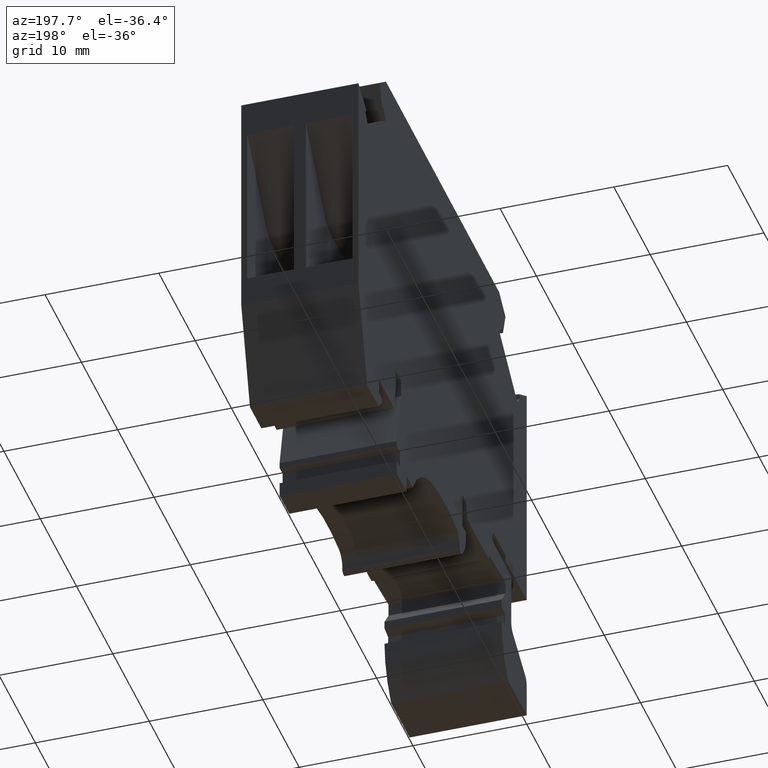
[diagram: clean part render]
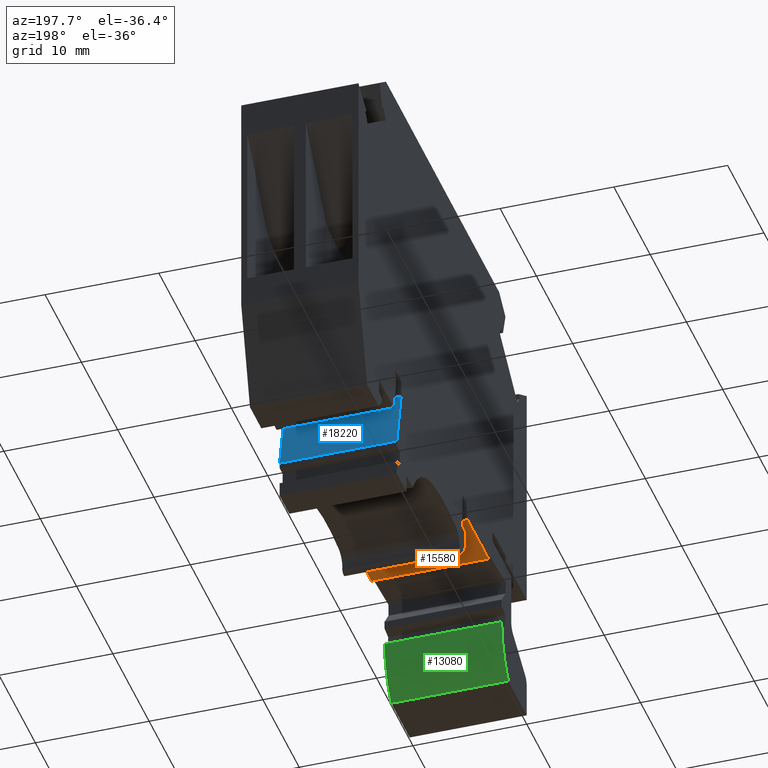
[diagram: same view with three faces highlighted in distinct colors, each labeled with its STEP entity id]
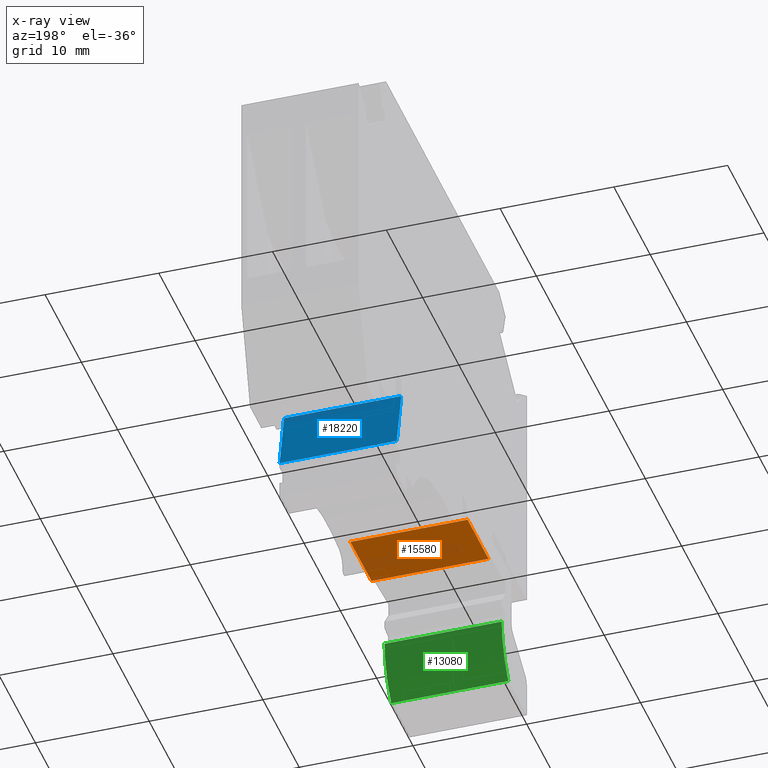
[diagram: x-ray of the same camera — body ghosted, the three highlighted faces saturated]
A machine part, auxiliary view with three faces highlighted in distinct colors.
The next image is the same camera in x-ray (body ghosted, the three faces saturated) — at least one of them is partly hidden behind the body in this view.
Their STEP definitions:

[orange] entity #15580 — the highlighted planar face has unit normal (-0, -0, 1).
#4010=CARTESIAN_POINT('',(-28.5520985338077,13.1295237515582,10.3));
#4020=VERTEX_POINT('',#4010);
#4050=CARTESIAN_POINT('',(0.,13.1295237515583,10.3));
#4060=DIRECTION('',(-1.,-5.25286014369684E-15,0.));
#4070=VECTOR('',#4060,1.);
#4080=LINE('',#4050,#4070);
#4090=CARTESIAN_POINT('',(-34.3520985338076,13.1295237515581,10.3));
#4100=VERTEX_POINT('',#4090);
#4110=EDGE_CURVE('',#4020,#4100,#4080,.T.);
#7350=CARTESIAN_POINT('',(-34.3520985338076,13.1295237515581,
-7.105427357601E-15));
#7360=VERTEX_POINT('',#7350);
#7390=CARTESIAN_POINT('',(0.,13.1295237515583,-7.105427357601E-15));
#7400=DIRECTION('',(-1.,-5.25286014369684E-15,0.));
#7410=VECTOR('',#7400,1.);
#7420=LINE('',#7390,#7410);
#7430=CARTESIAN_POINT('',(-28.5520985338077,13.1295237515582,
-7.105427357601E-15));
#7440=VERTEX_POINT('',#7430);
#7450=EDGE_CURVE('',#7440,#7360,#7420,.T.);
#15260=CARTESIAN_POINT('',(-28.5520985338077,13.1295237515582,5.15));
#15270=DIRECTION('',(0.,0.,1.));
#15280=VECTOR('',#15270,1.);
#15290=LINE('',#15260,#15280);
#15300=EDGE_CURVE('',#7440,#4020,#15290,.T.);
#15420=CARTESIAN_POINT('',(-29.7798217145742,13.1295237515582,5.15));
#15430=DIRECTION('',(-5.25286014369684E-15,1.,0.));
#15440=DIRECTION('',(1.,5.25286014369684E-15,0.));
#15450=AXIS2_PLACEMENT_3D('',#15420,#15430,#15440);
#15460=PLANE('',#15450);
#15470=ORIENTED_EDGE('',*,*,#4110,.T.);
#15480=ORIENTED_EDGE('',*,*,#15300,.T.);
#15490=ORIENTED_EDGE('',*,*,#7450,.F.);
#15500=CARTESIAN_POINT('',(-34.3520985338078,13.1295237515581,5.15));
#15510=DIRECTION('',(0.,0.,1.));
#15520=VECTOR('',#15510,1.);
#15530=LINE('',#15500,#15520);
#15540=EDGE_CURVE('',#7360,#4100,#15530,.T.);
#15550=ORIENTED_EDGE('',*,*,#15540,.F.);
#15560=EDGE_LOOP('',(#15550,#15490,#15480,#15470));
#15570=FACE_OUTER_BOUND('',#15560,.T.);
#15580=ADVANCED_FACE('',(#15570),#15460,.F.);

[blue] entity #18220 — the highlighted planar face has unit normal (0, -0.9763, -0.2164).
#2520=CARTESIAN_POINT('',(-10.2770985338077,13.1551416685442,10.3));
#2530=VERTEX_POINT('',#2520);
#2560=CARTESIAN_POINT('',(-9.47427766563456,9.53385075155829,10.3));
#2570=DIRECTION('',(0.216439613938103,-0.976296007119933,0.));
#2580=VECTOR('',#2570,1.);
#2590=LINE('',#2560,#2580);
#2600=CARTESIAN_POINT('',(-9.0520985338077,7.62952375155818,10.3));
#2610=VERTEX_POINT('',#2600);
#2620=EDGE_CURVE('',#2530,#2610,#2590,.T.);
#8840=CARTESIAN_POINT('',(-9.0520985338077,7.62952375155818,
-7.105427357601E-15));
#8850=VERTEX_POINT('',#8840);
#8880=CARTESIAN_POINT('',(-9.47427766563456,9.53385075155829,
3.5527136788005E-15));
#8890=DIRECTION('',(0.216439613938103,-0.976296007119933,0.));
#8900=VECTOR('',#8890,1.);
#8910=LINE('',#8880,#8900);
#8920=CARTESIAN_POINT('',(-10.2770985338077,13.1551416685442,
-7.105427357601E-15));
#8930=VERTEX_POINT('',#8920);
#8940=EDGE_CURVE('',#8930,#8850,#8910,.T.);
#17900=CARTESIAN_POINT('',(-10.2770985338077,13.1551416685442,5.15));
#17910=DIRECTION('',(0.,0.,-1.));
#17920=VECTOR('',#17910,1.);
#17930=LINE('',#17900,#17920);
#17940=EDGE_CURVE('',#2530,#8930,#17930,.T.);
#18060=CARTESIAN_POINT('',(-10.2296905480476,12.9412980640345,5.15));
#18070=DIRECTION('',(-0.976296007119933,-0.216439613938103,-0.));
#18080=DIRECTION('',(-0.216439613938103,0.976296007119933,0.));
#18090=AXIS2_PLACEMENT_3D('',#18060,#18070,#18080);
#18100=PLANE('',#18090);
#18110=ORIENTED_EDGE('',*,*,#2620,.T.);
#18120=ORIENTED_EDGE('',*,*,#17940,.F.);
#18130=ORIENTED_EDGE('',*,*,#8940,.F.);
#18140=CARTESIAN_POINT('',(-9.0520985338077,7.62952375155818,5.15));
#18150=DIRECTION('',(0.,0.,-1.));
#18160=VECTOR('',#18150,1.);
#18170=LINE('',#18140,#18160);
#18180=EDGE_CURVE('',#2610,#8850,#18170,.T.);
#18190=ORIENTED_EDGE('',*,*,#18180,.T.);
#18200=EDGE_LOOP('',(#18190,#18130,#18120,#18110));
#18210=FACE_OUTER_BOUND('',#18200,.T.);
#18220=ADVANCED_FACE('',(#18210),#18100,.F.);

[green] entity #13080 — the highlighted cylindrical surface (partial cylindrical patch) has radius 7.47 mm, axis along (1, -0, 0).
#4730=CARTESIAN_POINT('',(-37.949420700094,9.12894476048504,10.3));
#4740=VERTEX_POINT('',#4730);
#4770=CARTESIAN_POINT('',(-45.4194206776555,9.12952375155828,10.3));
#4780=DIRECTION('',(0.,0.,1.));
#4790=DIRECTION('',(1.,0.,0.));
#4800=AXIS2_PLACEMENT_3D('',#4770,#4780,#4790);
#4810=CIRCLE('',#4800,7.47);
#4820=CARTESIAN_POINT('',(-39.7810787227897,4.22952375155828,10.3));
#4830=VERTEX_POINT('',#4820);
#4840=EDGE_CURVE('',#4830,#4740,#4810,.T.);
#6620=CARTESIAN_POINT('',(-39.7810787227897,4.22952375155828,
-7.105427357601E-15));
#6630=VERTEX_POINT('',#6620);
#6660=CARTESIAN_POINT('',(-45.4194206776555,9.12952375155828,
3.5527136788005E-15));
#6670=DIRECTION('',(0.,0.,1.));
#6680=DIRECTION('',(1.,0.,0.));
#6690=AXIS2_PLACEMENT_3D('',#6660,#6670,#6680);
#6700=CIRCLE('',#6690,7.47);
#6710=CARTESIAN_POINT('',(-37.949420700094,9.12894476048504,
-7.105427357601E-15));
#6720=VERTEX_POINT('',#6710);
#6730=EDGE_CURVE('',#6630,#6720,#6700,.T.);
#12870=CARTESIAN_POINT('',(-45.4194206776555,9.12952375155828,5.15));
#12880=DIRECTION('',(0.,0.,1.));
#12890=DIRECTION('',(1.,0.,0.));
#12900=AXIS2_PLACEMENT_3D('',#12870,#12880,#12890);
#12910=CYLINDRICAL_SURFACE('',#12900,7.47);
#12920=ORIENTED_EDGE('',*,*,#4840,.F.);
#12930=CARTESIAN_POINT('',(-37.949420700094,9.12894476048504,5.15));
#12940=DIRECTION('',(0.,0.,1.));
#12950=VECTOR('',#12940,1.);
#12960=LINE('',#12930,#12950);
#12970=EDGE_CURVE('',#6720,#4740,#12960,.T.);
#12980=ORIENTED_EDGE('',*,*,#12970,.T.);
#12990=ORIENTED_EDGE('',*,*,#6730,.T.);
#13000=CARTESIAN_POINT('',(-39.7810787227897,4.22952375155828,5.15));
#13010=DIRECTION('',(0.,0.,1.));
#13020=VECTOR('',#13010,1.);
#13030=LINE('',#13000,#13020);
#13040=EDGE_CURVE('',#6630,#4830,#13030,.T.);
#13050=ORIENTED_EDGE('',*,*,#13040,.F.);
#13060=EDGE_LOOP('',(#13050,#12990,#12980,#12920));
#13070=FACE_OUTER_BOUND('',#13060,.T.);
#13080=ADVANCED_FACE('',(#13070),#12910,.T.);